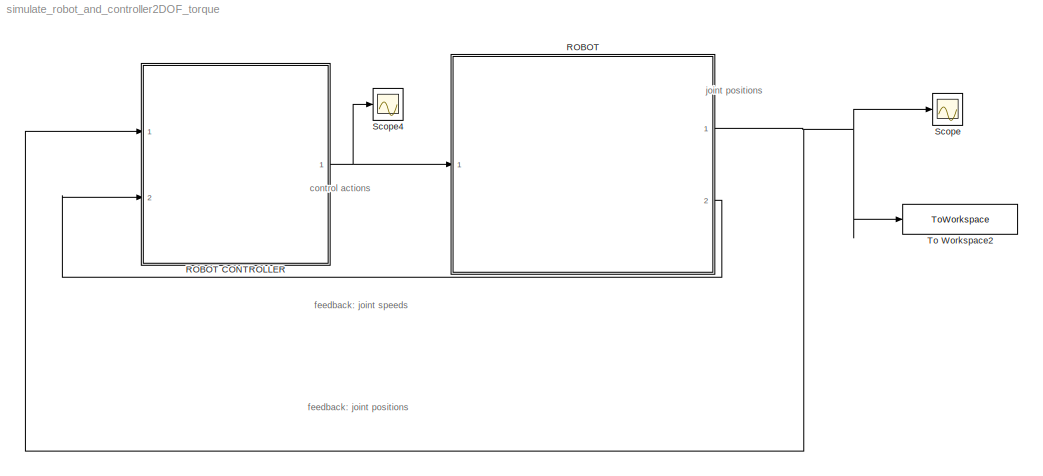
MODEL simulate_robot_and_controller2DOF_torque
KIND model
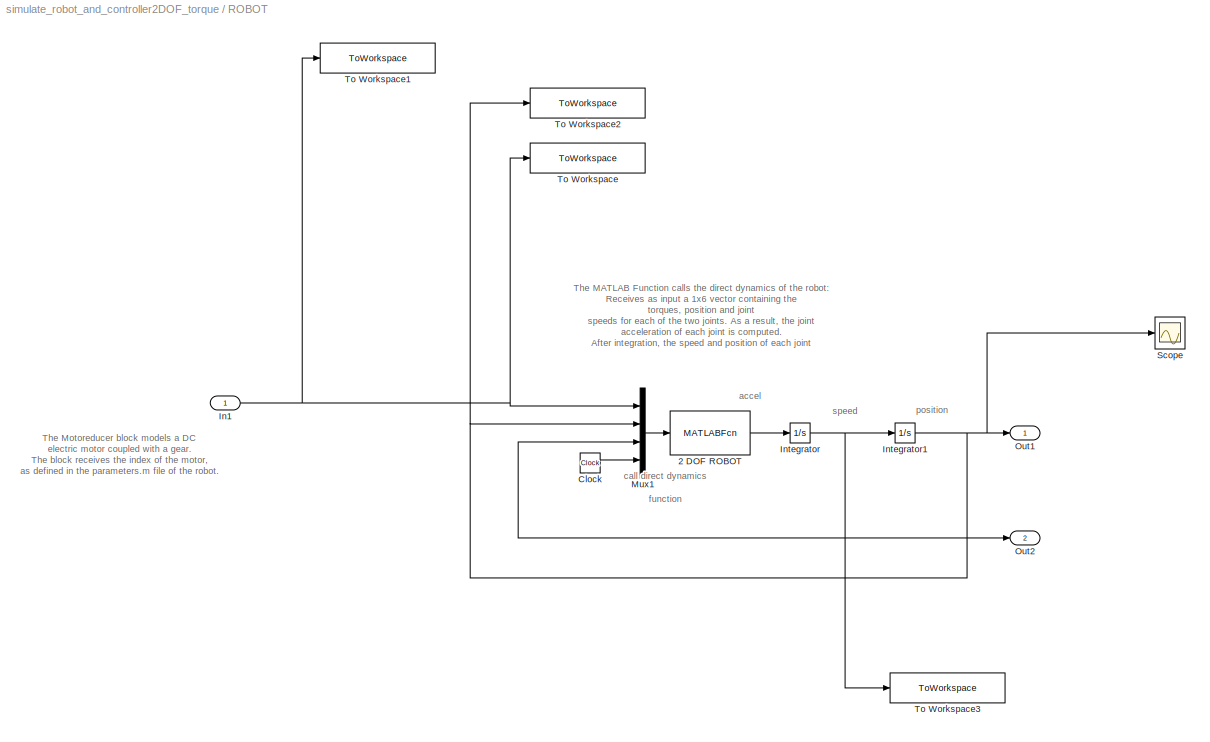
BLOCK [SubSystem] ROBOT
  Ports = [1, 2]
  RequestExecContextInheritance = off
  SID = 1
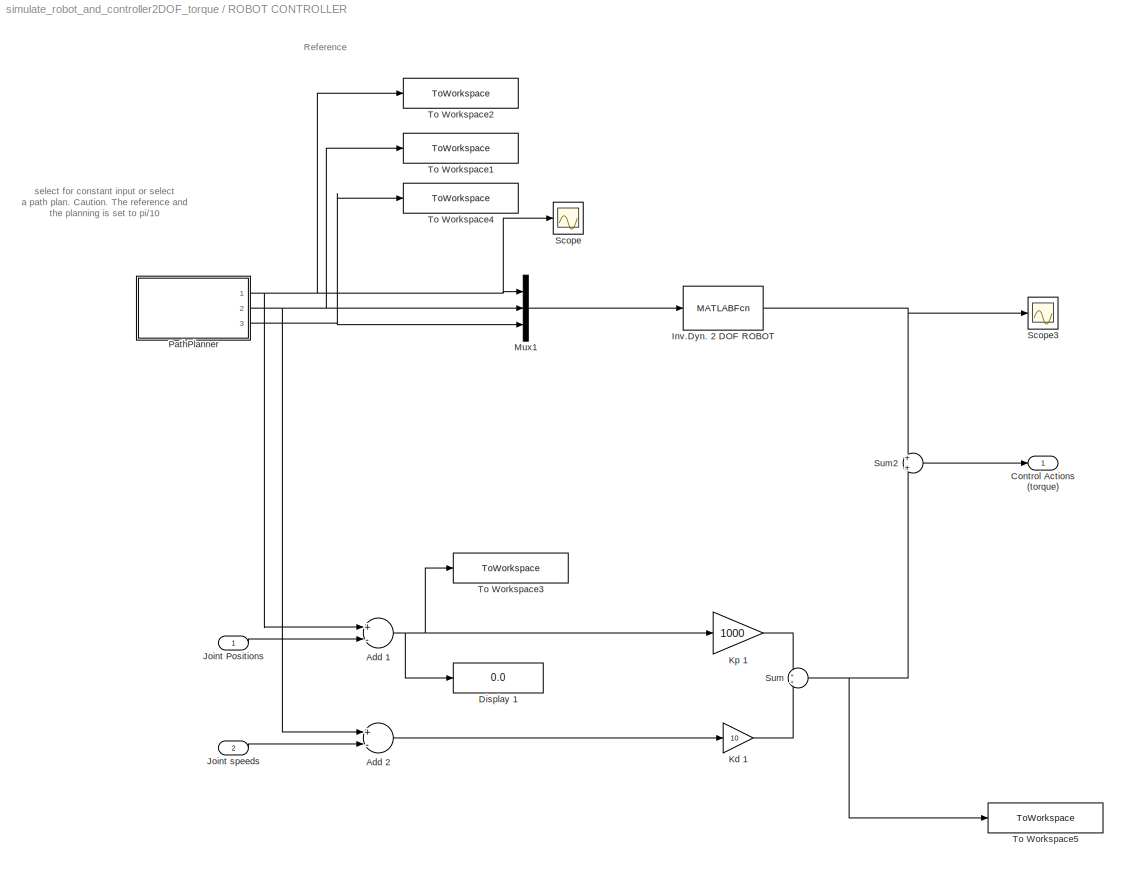
BLOCK [SubSystem] ROBOT CONTROLLER
  Description = ROBOT CONTROLLER
  Ports = [2, 1]
  RequestExecContextInheritance = off
  SID = 197
BLOCK [Sum] ROBOT CONTROLLER/Add 1
  InputSameDT = off
  Inputs = +-
  OutDataTypeStr = Inherit: Inherit via internal rule
  Ports = [2, 1]
  SID = 199
  SaturateOnIntegerOverflow = off
BLOCK [Sum] ROBOT CONTROLLER/Add 2
  InputSameDT = off
  Inputs = +-
  OutDataTypeStr = Inherit: Inherit via internal rule
  Ports = [2, 1]
  SID = 406
  SaturateOnIntegerOverflow = off
BLOCK [Outport] ROBOT CONTROLLER/Control Actions (torque)
  IconDisplay = Port number
  SID = 210
BLOCK [Display] ROBOT CONTROLLER/Display 1
  Decimation = 1
  Ports = [1]
  SID = 317
BLOCK [MATLABFcn] ROBOT CONTROLLER/Inv.Dyn. 2 DOF ROBOT
  MATLABFcn = call_inverse_dynamics_2dofplanar_s5b(u)
  OutputDimensions = 2
  Ports = [1, 1]
  SID = 394
BLOCK [Inport] ROBOT CONTROLLER/Joint Positions
  IconDisplay = Port number
  SID = 304
BLOCK [Inport] ROBOT CONTROLLER/Joint speeds
  IconDisplay = Port number
  Port = 2
  SID = 404
BLOCK [Gain] ROBOT CONTROLLER/Kd 1
  Gain = 10
  OutDataTypeStr = Inherit: Inherit via internal rule
  ParamDataTypeStr = Inherit: Inherit via internal rule
  SID = 296
  SaturateOnIntegerOverflow = off
BLOCK [Gain] ROBOT CONTROLLER/Kp 1
  Gain = 1000
  OutDataTypeStr = Inherit: Inherit via internal rule
  ParamDataTypeStr = Inherit: Inherit via internal rule
  SID = 294
  SaturateOnIntegerOverflow = off
BLOCK [Mux] ROBOT CONTROLLER/Mux1
  DisplayOption = bar
  Inputs = 3
  Ports = [3, 1]
  SID = 395
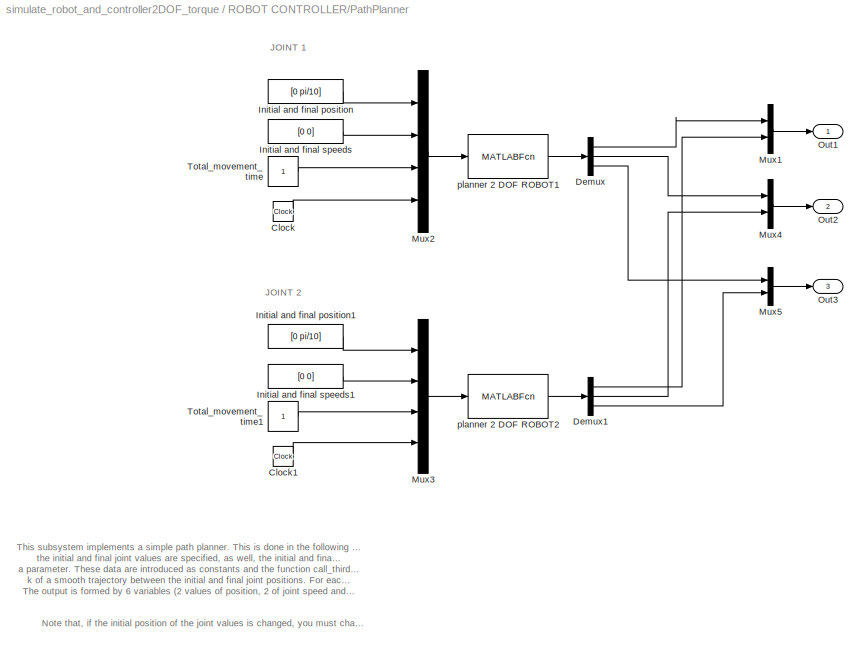
BLOCK [SubSystem] ROBOT CONTROLLER/PathPlanner
  Ports = [0, 3]
  RequestExecContextInheritance = off
  SID = 338
BLOCK [Clock] ROBOT CONTROLLER/PathPlanner/Clock
  SID = 339
BLOCK [Clock] ROBOT CONTROLLER/PathPlanner/Clock1
  SID = 340
BLOCK [Demux] ROBOT CONTROLLER/PathPlanner/Demux
  DisplayOption = bar
  Outputs = 3
  Ports = [1, 3]
  SID = 341
BLOCK [Demux] ROBOT CONTROLLER/PathPlanner/Demux1
  DisplayOption = bar
  Outputs = 3
  Ports = [1, 3]
  SID = 342
BLOCK [Constant] ROBOT CONTROLLER/PathPlanner/Initial and final position
  SID = 343
  Value = [0 pi/10]
BLOCK [Constant] ROBOT CONTROLLER/PathPlanner/Initial and final position1
  SID = 344
  Value = [0 pi/10]
BLOCK [Constant] ROBOT CONTROLLER/PathPlanner/Initial and final speeds
  SID = 345
  Value = [0 0]
BLOCK [Constant] ROBOT CONTROLLER/PathPlanner/Initial and final speeds1
  SID = 346
  Value = [0 0]
BLOCK [Mux] ROBOT CONTROLLER/PathPlanner/Mux1
  DisplayOption = bar
  Inputs = 2
  Ports = [2, 1]
  SID = 391
BLOCK [Mux] ROBOT CONTROLLER/PathPlanner/Mux2
  DisplayOption = bar
  Ports = [4, 1]
  SID = 348
BLOCK [Mux] ROBOT CONTROLLER/PathPlanner/Mux3
  DisplayOption = bar
  Ports = [4, 1]
  SID = 349
BLOCK [Mux] ROBOT CONTROLLER/PathPlanner/Mux4
  DisplayOption = bar
  Inputs = 2
  Ports = [2, 1]
  SID = 392
BLOCK [Mux] ROBOT CONTROLLER/PathPlanner/Mux5
  DisplayOption = bar
  Inputs = 2
  Ports = [2, 1]
  SID = 393
BLOCK [Outport] ROBOT CONTROLLER/PathPlanner/Out1
  IconDisplay = Port number
  SID = 354
BLOCK [Outport] ROBOT CONTROLLER/PathPlanner/Out2
  IconDisplay = Port number
  Port = 2
  SID = 388
BLOCK [Outport] ROBOT CONTROLLER/PathPlanner/Out3
  IconDisplay = Port number
  Port = 3
  SID = 389
BLOCK [Constant] ROBOT CONTROLLER/PathPlanner/Total_movement_time
  SID = 350
BLOCK [Constant] ROBOT CONTROLLER/PathPlanner/Total_movement_time1
  SID = 351
BLOCK [MATLABFcn] ROBOT CONTROLLER/PathPlanner/planner 2 DOF ROBOT1
  MATLABFcn = call_third_order_planner(u)
  OutputDimensions = 3
  Ports = [1, 1]
  SID = 352
BLOCK [MATLABFcn] ROBOT CONTROLLER/PathPlanner/planner 2 DOF ROBOT2
  MATLABFcn = call_third_order_planner(u)
  OutputDimensions = 3
  Ports = [1, 1]
  SID = 353
BLOCK [Scope] ROBOT CONTROLLER/Scope
  Floating = off
  NumInputPorts = 1
  Ports = [1]
  SID = 396
  ScopeSpecificationString = Simulink.scopes.TimeScopeBlockCfg('CurrentConfiguration', extmgr.ConfigurationSet(extmgr.Configuration('Core','General UI',true),extmgr.Configuration('Core','Source UI',true),extmgr.Configuration('Sources','WiredSimulink',true,'DataLogging',true,'DataLoggingSaveFormat','Array','DataLoggingDecimation','1','DataLoggingDecimateData',true,'DataLoggingVariableName','ScopeData1'),extmgr.Configuration('V...<+1745ch>
BLOCK [Scope] ROBOT CONTROLLER/Scope3
  Floating = off
  NumInputPorts = 1
  Ports = [1]
  SID = 399
  ScopeSpecificationString = Simulink.scopes.TimeScopeBlockCfg('CurrentConfiguration', extmgr.ConfigurationSet(extmgr.Configuration('Core','General UI',true),extmgr.Configuration('Core','Source UI',true),extmgr.Configuration('Sources','WiredSimulink',true,'DataLogging',true,'DataLoggingSaveFormat','Array','DataLoggingDecimation','1','DataLoggingDecimateData',true,'DataLoggingVariableName','ScopeData4'),extmgr.Configuration('V...<+1763ch>
BLOCK [Sum] ROBOT CONTROLLER/Sum
  IconShape = round
  InputSameDT = off
  OutDataTypeStr = Inherit: Inherit via internal rule
  Ports = [2, 1]
  SID = 291
  SaturateOnIntegerOverflow = off
BLOCK [Sum] ROBOT CONTROLLER/Sum2
  IconShape = round
  InputSameDT = off
  OutDataTypeStr = Inherit: Inherit via internal rule
  Ports = [2, 1]
  SID = 386
  SaturateOnIntegerOverflow = off
BLOCK [ToWorkspace] ROBOT CONTROLLER/To Workspace1
  MaxDataPoints = inf
  Ports = [1]
  SID = 407
  SampleTime = -1
  VariableName = speed_reference
BLOCK [ToWorkspace] ROBOT CONTROLLER/To Workspace2
  MaxDataPoints = inf
  Ports = [1]
  SID = 209
  SampleTime = -1
  VariableName = joint_reference
BLOCK [ToWorkspace] ROBOT CONTROLLER/To Workspace3
  MaxDataPoints = inf
  Ports = [1]
  SID = 402
  SampleTime = -1
  VariableName = joint_errors
BLOCK [ToWorkspace] ROBOT CONTROLLER/To Workspace4
  MaxDataPoints = inf
  Ports = [1]
  SID = 408
  SampleTime = -1
  VariableName = acceleration_reference
BLOCK [ToWorkspace] ROBOT CONTROLLER/To Workspace5
  MaxDataPoints = inf
  Ports = [1]
  SID = 409
  SampleTime = -1
  VariableName = pd_control_action
BLOCK [MATLABFcn] ROBOT/2 DOF ROBOT
  MATLABFcn = call_direct_dynamics_2dofplanar_s5b(u)
  OutputDimensions = 2
  Ports = [1, 1]
  SID = 3
BLOCK [Clock] ROBOT/Clock
  SID = 323
BLOCK [Inport] ROBOT/In1
  IconDisplay = Port number
  SID = 2
BLOCK [Integrator] ROBOT/Integrator
  InitialCondition = [0 0 ]
  Ports = [1, 1]
  SID = 16
BLOCK [Integrator] ROBOT/Integrator1
  InitialCondition = [0 0]
  Ports = [1, 1]
  SID = 17
BLOCK [Mux] ROBOT/Mux1
  DisplayOption = bar
  Ports = [4, 1]
  SID = 85
BLOCK [Outport] ROBOT/Out1
  IconDisplay = Port number
  SID = 89
BLOCK [Outport] ROBOT/Out2
  IconDisplay = Port number
  Port = 2
  SID = 403
BLOCK [Scope] ROBOT/Scope
  Floating = off
  NumInputPorts = 1
  Ports = [1]
  SID = 400
  ScopeSpecificationString = Simulink.scopes.TimeScopeBlockCfg('CurrentConfiguration', extmgr.ConfigurationSet(extmgr.Configuration('Core','General UI',true),extmgr.Configuration('Core','Source UI',true),extmgr.Configuration('Sources','WiredSimulink',true,'DataLogging',true,'DataLoggingSaveFormat','Array','DataLoggingDecimation','1','DataLoggingDecimateData',true,'DataLoggingVariableName','ScopeData5'),extmgr.Configuration('V...<+1741ch>
BLOCK [ToWorkspace] ROBOT/To Workspace
  MaxDataPoints = inf
  Ports = [1]
  SID = 86
  SampleTime = -1
  VariableName = joint_torques
BLOCK [ToWorkspace] ROBOT/To Workspace1
  MaxDataPoints = inf
  Ports = [1]
  SID = 87
  SampleTime = -1
  VariableName = control_actions
BLOCK [ToWorkspace] ROBOT/To Workspace2
  MaxDataPoints = inf
  Ports = [1]
  SID = 88
  SampleTime = -1
  VariableName = joint_positions
BLOCK [ToWorkspace] ROBOT/To Workspace3
  MaxDataPoints = inf
  Ports = [1]
  SID = 385
  SampleTime = -1
  VariableName = joint_speeds
BLOCK [Scope] Scope
  Floating = off
  NumInputPorts = 1
  Ports = [1]
  SID = 169
  ScopeSpecificationString = Simulink.scopes.TimeScopeBlockCfg('CurrentConfiguration', extmgr.ConfigurationSet(extmgr.Configuration('Core','General UI',true),extmgr.Configuration('Core','Source UI',true),extmgr.Configuration('Sources','WiredSimulink',true,'DataLogging',true,'DataLoggingSaveFormat','Array','DataLoggingDecimation','1','DataLoggingDecimateData',true),extmgr.Configuration('Visuals','Time Domain',true,'SerializedD...<+1720ch>
BLOCK [Scope] Scope4
  Floating = off
  NumInputPorts = 1
  Ports = [1]
  SID = 170
  ScopeSpecificationString = C++SS(StrPVP('Location','[62, 145, 1275, 638]'),StrPVP('Open','off'),StrPVP('ZoomMode','yonly'),MxPVP('AxesTitles',53,'struct(''axes1'',''%<SignalLabel>'')'),StrPVP('YMin','-2.5'),StrPVP('YMax','50'),StrPVP('SaveName','ScopeData4'),StrPVP('DataFormat','StructureWithTime'),StrPVP('LimitDataPoints','off'),StrPVP('BlockParamSampleTime','0'),StrPVP('Decimation','1'),StrPVP('BlockParamSampleInput','off...<+3ch>
BLOCK [ToWorkspace] To Workspace2
  MaxDataPoints = inf
  Ports = [1]
  SID = 337
  SampleTime = -1
  VariableName = control_results
ANNOTATION (root): control actions
ANNOTATION (root): feedback: joint positions
ANNOTATION (root): feedback: joint speeds
ANNOTATION (root): joint positions
ANNOTATION ROBOT: The MATLAB Function calls the direct dynamics of the robot: \nReceives as input a 1x6 vector containing the \ntorques, position and joint\nspeeds for each of the two joints. As a result, the joint \nacceleration of each joint is computed. \nAfter integration, the speed and position of each joint \nis computed and sent back to the controller
ANNOTATION ROBOT: The Motoreducer block models a DC \nelectric motor coupled with a gear. \nThe block receives the index of the motor, \nas defined in the parameters.m file of the robot.
ANNOTATION ROBOT: accel
ANNOTATION ROBOT: call direct dynamics\n function
ANNOTATION ROBOT: position
ANNOTATION ROBOT: speed
ANNOTATION ROBOT CONTROLLER: Reference
ANNOTATION ROBOT CONTROLLER: select for constant input or select\na path plan. Caution. The reference and\nthe planning is set to pi/10\n
ANNOTATION ROBOT CONTROLLER/PathPlanner: JOINT 1
ANNOTATION ROBOT CONTROLLER/PathPlanner: JOINT 2
ANNOTATION ROBOT CONTROLLER/PathPlanner: Note that, if the initial position of the joint values is changed, you must change the initial values of the position integrator. The same applies to the speed.
ANNOTATION ROBOT CONTROLLER/PathPlanner: This subsystem implements a simple path planner. This is done in the following way: For each of the two joints,\nthe initial and final joint values are specified, as well, the initial and final speeds are also specified. The total time needed to perform the movement is also\na parameter. These data are introduced as constants and the function call_third_order_planner is executed. At each time step...<+327ch>
NET ROBOT CONTROLLER/Add 1:1 -> ROBOT CONTROLLER/Display 1:1, ROBOT CONTROLLER/Kp 1:1, ROBOT CONTROLLER/To Workspace3:1
LINE ROBOT CONTROLLER/Add 2:1 -> ROBOT CONTROLLER/Kd 1:1
NET ROBOT CONTROLLER/Inv.Dyn. 2 DOF ROBOT:1 -> ROBOT CONTROLLER/Scope3:1, ROBOT CONTROLLER/Sum2:1
LINE ROBOT CONTROLLER/Joint Positions:1 -> ROBOT CONTROLLER/Add 1:2
LINE ROBOT CONTROLLER/Joint speeds:1 -> ROBOT CONTROLLER/Add 2:2
LINE ROBOT CONTROLLER/Kd 1:1 -> ROBOT CONTROLLER/Sum:2
LINE ROBOT CONTROLLER/Kp 1:1 -> ROBOT CONTROLLER/Sum:1
LINE ROBOT CONTROLLER/Mux1:1 -> ROBOT CONTROLLER/Inv.Dyn. 2 DOF ROBOT:1
LINE ROBOT CONTROLLER/PathPlanner/Clock1:1 -> ROBOT CONTROLLER/PathPlanner/Mux3:4
LINE ROBOT CONTROLLER/PathPlanner/Clock:1 -> ROBOT CONTROLLER/PathPlanner/Mux2:4
LINE ROBOT CONTROLLER/PathPlanner/Demux1:1 -> ROBOT CONTROLLER/PathPlanner/Mux1:2
LINE ROBOT CONTROLLER/PathPlanner/Demux1:2 -> ROBOT CONTROLLER/PathPlanner/Mux4:2
LINE ROBOT CONTROLLER/PathPlanner/Demux1:3 -> ROBOT CONTROLLER/PathPlanner/Mux5:2
LINE ROBOT CONTROLLER/PathPlanner/Demux:1 -> ROBOT CONTROLLER/PathPlanner/Mux1:1
LINE ROBOT CONTROLLER/PathPlanner/Demux:2 -> ROBOT CONTROLLER/PathPlanner/Mux4:1
LINE ROBOT CONTROLLER/PathPlanner/Demux:3 -> ROBOT CONTROLLER/PathPlanner/Mux5:1
LINE ROBOT CONTROLLER/PathPlanner/Initial and final position1:1 -> ROBOT CONTROLLER/PathPlanner/Mux3:1
LINE ROBOT CONTROLLER/PathPlanner/Initial and final position:1 -> ROBOT CONTROLLER/PathPlanner/Mux2:1
LINE ROBOT CONTROLLER/PathPlanner/Initial and final speeds1:1 -> ROBOT CONTROLLER/PathPlanner/Mux3:2
LINE ROBOT CONTROLLER/PathPlanner/Initial and final speeds:1 -> ROBOT CONTROLLER/PathPlanner/Mux2:2
LINE ROBOT CONTROLLER/PathPlanner/Mux1:1 -> ROBOT CONTROLLER/PathPlanner/Out1:1
LINE ROBOT CONTROLLER/PathPlanner/Mux2:1 -> ROBOT CONTROLLER/PathPlanner/planner 2 DOF ROBOT1:1
LINE ROBOT CONTROLLER/PathPlanner/Mux3:1 -> ROBOT CONTROLLER/PathPlanner/planner 2 DOF ROBOT2:1
LINE ROBOT CONTROLLER/PathPlanner/Mux4:1 -> ROBOT CONTROLLER/PathPlanner/Out2:1
LINE ROBOT CONTROLLER/PathPlanner/Mux5:1 -> ROBOT CONTROLLER/PathPlanner/Out3:1
LINE ROBOT CONTROLLER/PathPlanner/Total_movement_time1:1 -> ROBOT CONTROLLER/PathPlanner/Mux3:3
LINE ROBOT CONTROLLER/PathPlanner/Total_movement_time:1 -> ROBOT CONTROLLER/PathPlanner/Mux2:3
LINE ROBOT CONTROLLER/PathPlanner/planner 2 DOF ROBOT1:1 -> ROBOT CONTROLLER/PathPlanner/Demux:1
LINE ROBOT CONTROLLER/PathPlanner/planner 2 DOF ROBOT2:1 -> ROBOT CONTROLLER/PathPlanner/Demux1:1
NET ROBOT CONTROLLER/PathPlanner:1 -> ROBOT CONTROLLER/Add 1:1, ROBOT CONTROLLER/Mux1:1, ROBOT CONTROLLER/Scope:1, ROBOT CONTROLLER/To Workspace2:1
NET ROBOT CONTROLLER/PathPlanner:2 -> ROBOT CONTROLLER/Add 2:1, ROBOT CONTROLLER/Mux1:2, ROBOT CONTROLLER/To Workspace1:1
NET ROBOT CONTROLLER/PathPlanner:3 -> ROBOT CONTROLLER/Mux1:3, ROBOT CONTROLLER/To Workspace4:1
LINE ROBOT CONTROLLER/Sum2:1 -> ROBOT CONTROLLER/Control Actions (torque):1
NET ROBOT CONTROLLER/Sum:1 -> ROBOT CONTROLLER/Sum2:2, ROBOT CONTROLLER/To Workspace5:1
NET ROBOT CONTROLLER:1 -> ROBOT:1, Scope4:1
LINE ROBOT/2 DOF ROBOT:1 -> ROBOT/Integrator:1
LINE ROBOT/Clock:1 -> ROBOT/Mux1:4
NET ROBOT/In1:1 -> ROBOT/Mux1:1, ROBOT/To Workspace1:1, ROBOT/To Workspace:1
NET ROBOT/Integrator1:1 -> ROBOT/Mux1:2, ROBOT/Out1:1, ROBOT/Scope:1, ROBOT/To Workspace2:1
NET ROBOT/Integrator:1 -> ROBOT/Integrator1:1, ROBOT/Mux1:3, ROBOT/Out2:1, ROBOT/To Workspace3:1
LINE ROBOT/Mux1:1 -> ROBOT/2 DOF ROBOT:1
NET ROBOT:1 -> ROBOT CONTROLLER:1, Scope:1, To Workspace2:1
LINE ROBOT:2 -> ROBOT CONTROLLER:2
note: NET lines group one-source signal fan-out (src -> all destinations, sorted); 1:1 wires keep LINE
